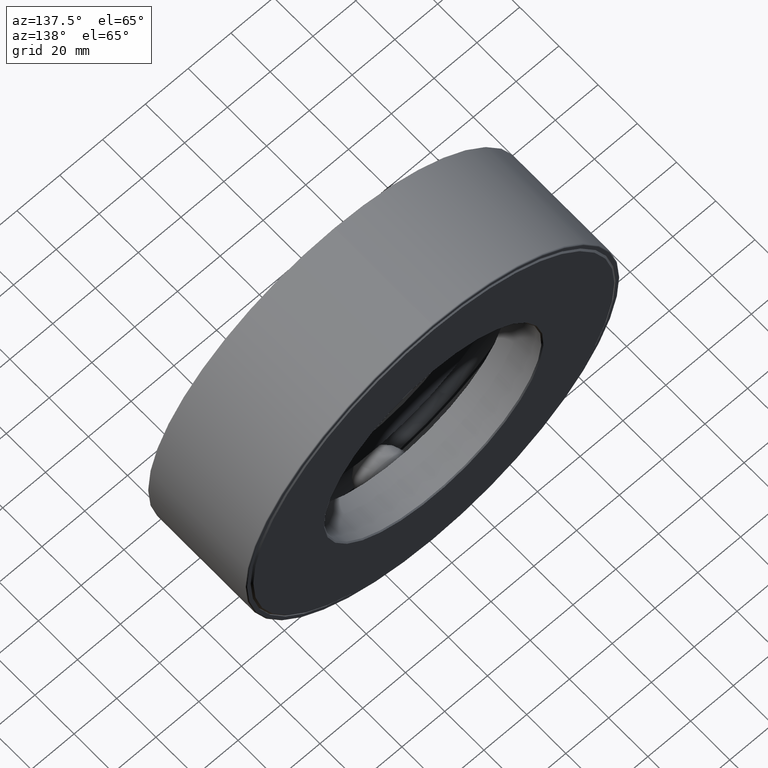
[diagram: clean part render]
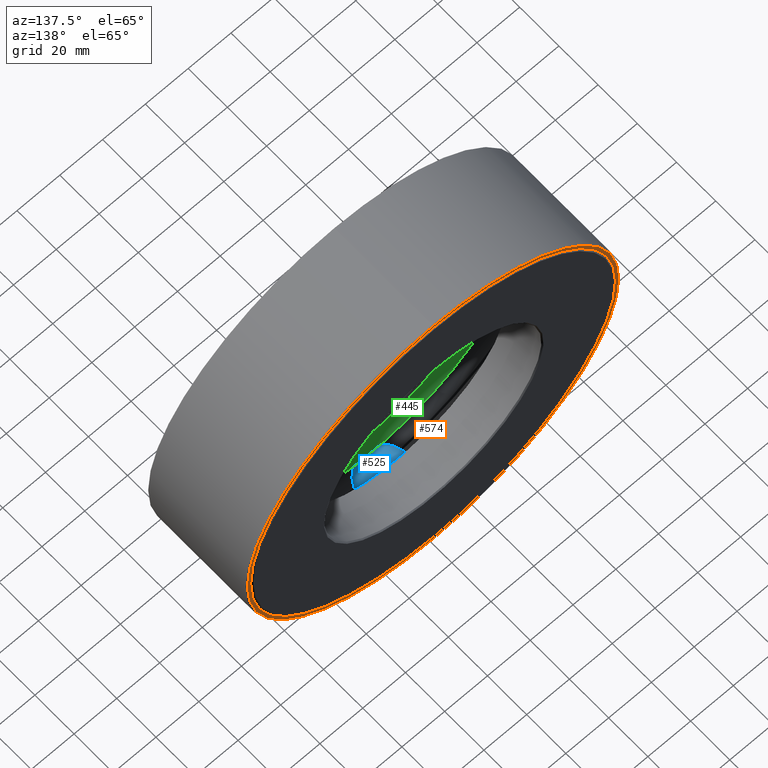
[diagram: same view with three faces highlighted in distinct colors, each labeled with its STEP entity id]
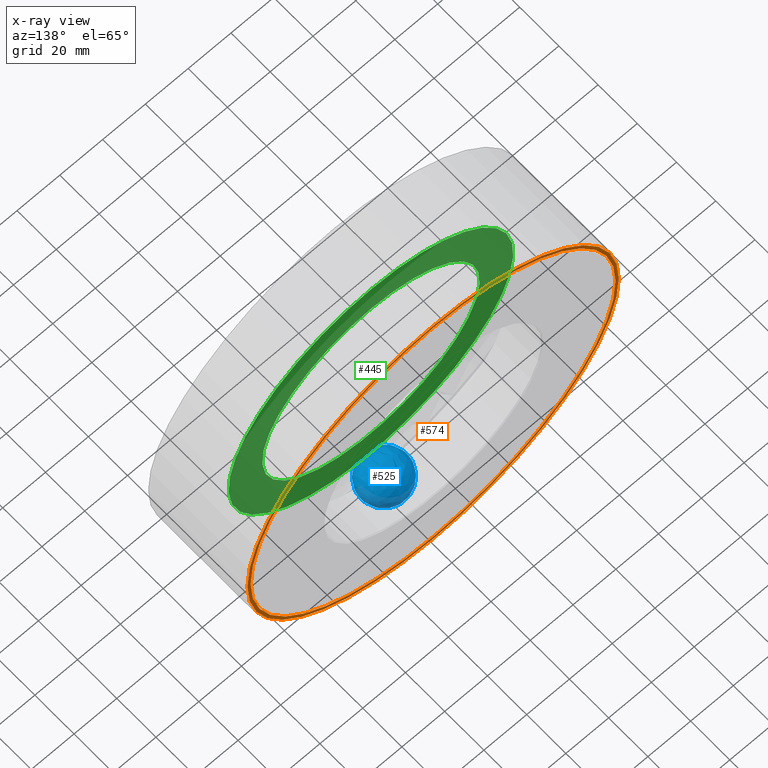
[diagram: x-ray of the same camera — body ghosted, the three highlighted faces saturated]
A machine part, auxiliary view with three faces highlighted in distinct colors.
The next image is the same camera in x-ray (body ghosted, the three faces saturated) — at least one of them is partly hidden behind the body in this view.
Their STEP definitions:

[orange] entity #574 — the highlighted planar face has unit normal (0, -1, 0).
#1 = EDGE_CURVE ( 'NONE', #572, #572, #26, .T. ) ;
#20 = VERTEX_POINT ( 'NONE', #99 ) ;
#24 = ORIENTED_EDGE ( 'NONE', *, *, #1, .T. ) ;
#26 = CIRCLE ( 'NONE', #356, 3.417500000000000400 ) ;
#38 = CIRCLE ( 'NONE', #281, 3.357499999999999900 ) ;
#76 = CARTESIAN_POINT ( 'NONE',  ( 0.0000000000000000000, 1.984999999999999400, 0.0000000000000000000 ) ) ;
#78 = FACE_OUTER_BOUND ( 'NONE', #606, .T. ) ;
#97 = FACE_BOUND ( 'NONE', #292, .T. ) ;
#99 = CARTESIAN_POINT ( 'NONE',  ( 0.0000000000000000000, 1.984999999999999400, 3.357499999999999900 ) ) ;
#133 = DIRECTION ( 'NONE',  ( 0.0000000000000000000, 0.0000000000000000000, 1.000000000000000000 ) ) ;
#146 = AXIS2_PLACEMENT_3D ( 'NONE', #519, #561, #286 ) ;
#147 = CARTESIAN_POINT ( 'NONE',  ( 0.0000000000000000000, 1.985000000000000100, 3.417500000000000400 ) ) ;
#197 = EDGE_CURVE ( 'NONE', #20, #20, #38, .T. ) ;
#226 = CARTESIAN_POINT ( 'NONE',  ( 0.0000000000000000000, 1.985000000000000100, 0.0000000000000000000 ) ) ;
#281 = AXIS2_PLACEMENT_3D ( 'NONE', #76, #413, #133 ) ;
#286 = DIRECTION ( 'NONE',  ( 0.0000000000000000000, -0.0000000000000000000, -1.000000000000000000 ) ) ;
#292 = EDGE_LOOP ( 'NONE', ( #599 ) ) ;
#316 = DIRECTION ( 'NONE',  ( -0.0000000000000000000, 1.000000000000000000, -0.0000000000000000000 ) ) ;
#356 = AXIS2_PLACEMENT_3D ( 'NONE', #226, #316, #544 ) ;
#413 = DIRECTION ( 'NONE',  ( -0.0000000000000000000, 1.000000000000000000, -0.0000000000000000000 ) ) ;
#470 = PLANE ( 'NONE',  #146 ) ;
#519 = CARTESIAN_POINT ( 'NONE',  ( 1.807572755807812300E-014, 1.984999999999999700, 0.0000000000000000000 ) ) ;
#544 = DIRECTION ( 'NONE',  ( 0.0000000000000000000, 0.0000000000000000000, 1.000000000000000000 ) ) ;
#561 = DIRECTION ( 'NONE',  ( 0.0000000000000000000, -1.000000000000000000, 0.0000000000000000000 ) ) ;
#572 = VERTEX_POINT ( 'NONE', #147 ) ;
#574 = ADVANCED_FACE ( 'NONE', ( #97, #78 ), #470, .F. ) ;
#599 = ORIENTED_EDGE ( 'NONE', *, *, #197, .F. ) ;
#606 = EDGE_LOOP ( 'NONE', ( #24 ) ) ;

[blue] entity #525 — the highlighted spherical surface has radius 11.1125 mm.
#111 = SPHERICAL_SURFACE ( 'NONE', #211, 0.4374999999999998900 ) ;
#150 = CARTESIAN_POINT ( 'NONE',  ( -3.111957317310885400E-014, 1.000000000000000000, -2.971000000000000500 ) ) ;
#211 = AXIS2_PLACEMENT_3D ( 'NONE', #150, #560, #289 ) ;
#289 = DIRECTION ( 'NONE',  ( 1.047444401652939700E-014, 0.0000000000000000000, 1.000000000000000000 ) ) ;
#525 = ADVANCED_FACE ( 'NONE', ( ), #111, .T. ) ;
#560 = DIRECTION ( 'NONE',  ( 1.000000000000000000, 0.0000000000000000000, -1.047444401652939700E-014 ) ) ;

[green] entity #445 — the highlighted planar face has unit normal (0, -1, 0).
#32 = DIRECTION ( 'NONE',  ( 0.0000000000000000000, -1.000000000000000000, 0.0000000000000000000 ) ) ;
#36 = DIRECTION ( 'NONE',  ( 0.0000000000000000000, 0.0000000000000000000, 1.000000000000000000 ) ) ;
#47 = CARTESIAN_POINT ( 'NONE',  ( 0.0000000000000000000, 0.7374999999999999300, 2.000000000000000000 ) ) ;
#71 = AXIS2_PLACEMENT_3D ( 'NONE', #507, #423, #598 ) ;
#82 = AXIS2_PLACEMENT_3D ( 'NONE', #545, #32, #364 ) ;
#117 = EDGE_CURVE ( 'NONE', #501, #501, #600, .T. ) ;
#174 = FACE_BOUND ( 'NONE', #278, .T. ) ;
#201 = VERTEX_POINT ( 'NONE', #427 ) ;
#207 = EDGE_CURVE ( 'NONE', #201, #201, #473, .T. ) ;
#234 = CARTESIAN_POINT ( 'NONE',  ( 0.0000000000000000000, 0.7374999999999999300, 0.0000000000000000000 ) ) ;
#278 = EDGE_LOOP ( 'NONE', ( #548 ) ) ;
#326 = DIRECTION ( 'NONE',  ( -0.0000000000000000000, 1.000000000000000000, -0.0000000000000000000 ) ) ;
#364 = DIRECTION ( 'NONE',  ( 0.0000000000000000000, -0.0000000000000000000, -1.000000000000000000 ) ) ;
#387 = ORIENTED_EDGE ( 'NONE', *, *, #207, .T. ) ;
#402 = FACE_OUTER_BOUND ( 'NONE', #403, .T. ) ;
#403 = EDGE_LOOP ( 'NONE', ( #387 ) ) ;
#423 = DIRECTION ( 'NONE',  ( -0.0000000000000000000, 1.000000000000000000, -0.0000000000000000000 ) ) ;
#427 = CARTESIAN_POINT ( 'NONE',  ( 0.0000000000000000000, 0.7374999999999999300, 2.621000000000000400 ) ) ;
#445 = ADVANCED_FACE ( 'NONE', ( #174, #402 ), #495, .F. ) ;
#473 = CIRCLE ( 'NONE', #554, 2.621000000000000400 ) ;
#495 = PLANE ( 'NONE',  #82 ) ;
#501 = VERTEX_POINT ( 'NONE', #47 ) ;
#507 = CARTESIAN_POINT ( 'NONE',  ( 0.0000000000000000000, 0.7374999999999999300, 0.0000000000000000000 ) ) ;
#545 = CARTESIAN_POINT ( 'NONE',  ( 0.0000000000000000000, 0.7374999999999999300, 0.0000000000000000000 ) ) ;
#548 = ORIENTED_EDGE ( 'NONE', *, *, #117, .F. ) ;
#554 = AXIS2_PLACEMENT_3D ( 'NONE', #234, #326, #36 ) ;
#598 = DIRECTION ( 'NONE',  ( 0.0000000000000000000, 0.0000000000000000000, 1.000000000000000000 ) ) ;
#600 = CIRCLE ( 'NONE', #71, 2.000000000000000000 ) ;